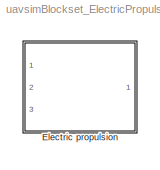
MODEL uavsimBlockset_ElectricPropulsion
KIND library
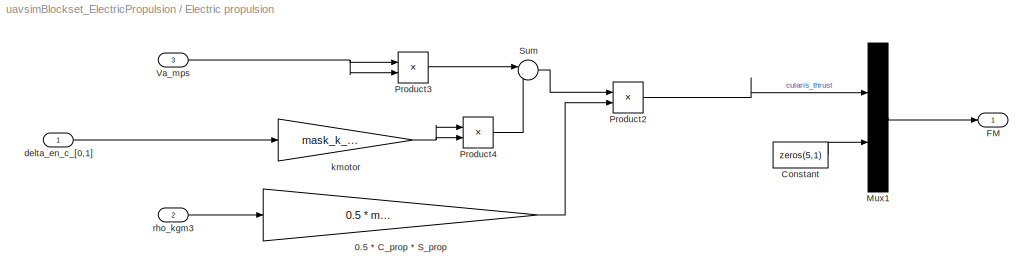
BLOCK [SubSystem] Electric propulsion
  Ports = [3, 1]
  RequestExecContextInheritance = off
  SID = 2632
  Variant = off
BLOCK [Gain] Electric propulsion/0.5 * C_prop * S_prop
  Gain = 0.5 * mask_S_prop * mask_C_prop
  OutDataTypeStr = Inherit: Inherit via internal rule
  ParamDataTypeStr = Inherit: Inherit via internal rule
  SID = 4305
  SaturateOnIntegerOverflow = off
BLOCK [Constant] Electric propulsion/Constant
  SID = 4309
  Value = zeros(5,1)
BLOCK [Outport] Electric propulsion/FM
  IconDisplay = Port number
  SID = 4321
BLOCK [Mux] Electric propulsion/Mux1
  Inputs = 2
  Ports = [2, 1]
  SID = 4314
BLOCK [Product] Electric propulsion/Product2
  InputSameDT = off
  OutDataTypeStr = Inherit: Inherit via internal rule
  Ports = [2, 1]
  SID = 4315
  SaturateOnIntegerOverflow = off
BLOCK [Product] Electric propulsion/Product3
  InputSameDT = off
  OutDataTypeStr = Inherit: Inherit via internal rule
  Ports = [2, 1]
  SID = 4316
  SaturateOnIntegerOverflow = off
BLOCK [Product] Electric propulsion/Product4
  InputSameDT = off
  OutDataTypeStr = Inherit: Inherit via internal rule
  Ports = [2, 1]
  SID = 4317
  SaturateOnIntegerOverflow = off
BLOCK [Sum] Electric propulsion/Sum
  IconShape = round
  InputSameDT = off
  Inputs = |-+
  OutDataTypeStr = Inherit: Inherit via internal rule
  Ports = [2, 1]
  SID = 4319
  SaturateOnIntegerOverflow = off
BLOCK [Inport] Electric propulsion/Va_mps
  IconDisplay = Port number
  Port = 3
  SID = 4304
BLOCK [Inport] Electric propulsion/delta_en_c_[0,1]
  IconDisplay = Port number
  SID = 2633
BLOCK [Gain] Electric propulsion/kmotor
  Gain = mask_k_motor
  OutDataTypeStr = Inherit: Inherit via internal rule
  ParamDataTypeStr = Inherit: Inherit via internal rule
  SID = 4320
  SaturateOnIntegerOverflow = off
BLOCK [Inport] Electric propulsion/rho_kgm3
  IconDisplay = Port number
  Port = 2
  SID = 4303
LINE Electric propulsion/0.5 * C_prop * S_prop:1 -> Electric propulsion/Product2:2
LINE Electric propulsion/Constant:1 -> Electric propulsion/Mux1:2
LINE Electric propulsion/Mux1:1 -> Electric propulsion/FM:1
LINE Electric propulsion/Product2:1 -> Electric propulsion/Mux1:1
LINE Electric propulsion/Product3:1 -> Electric propulsion/Sum:1
LINE Electric propulsion/Product4:1 -> Electric propulsion/Sum:2
LINE Electric propulsion/Sum:1 -> Electric propulsion/Product2:1
NET Electric propulsion/Va_mps:1 -> Electric propulsion/Product3:1, Electric propulsion/Product3:2
LINE Electric propulsion/delta_en_c_[0,1]:1 -> Electric propulsion/kmotor:1
NET Electric propulsion/kmotor:1 -> Electric propulsion/Product4:1, Electric propulsion/Product4:2
LINE Electric propulsion/rho_kgm3:1 -> Electric propulsion/0.5 * C_prop * S_prop:1
note: NET lines group one-source signal fan-out (src -> all destinations, sorted); 1:1 wires keep LINE
